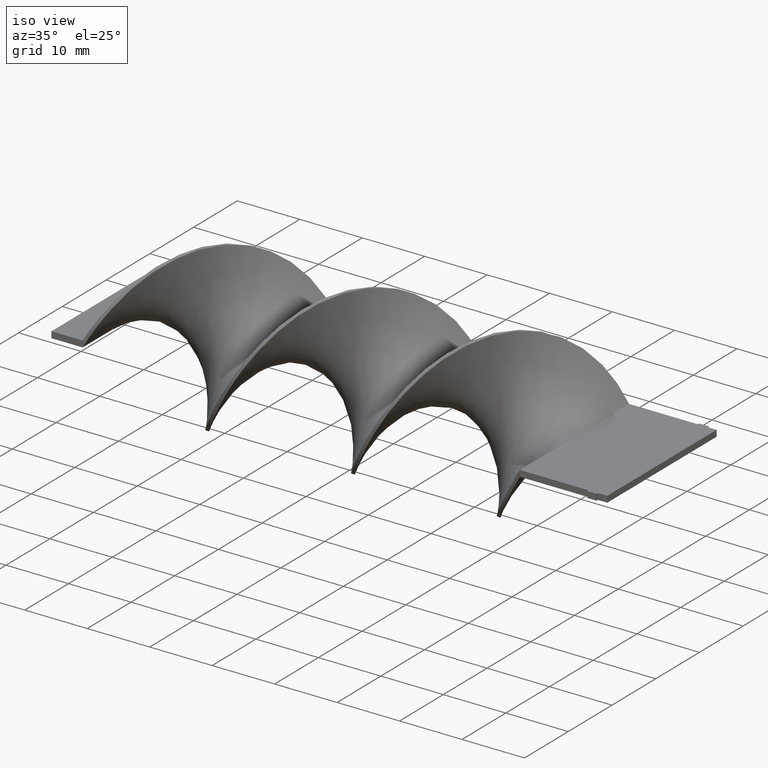
[diagram: clean part render]
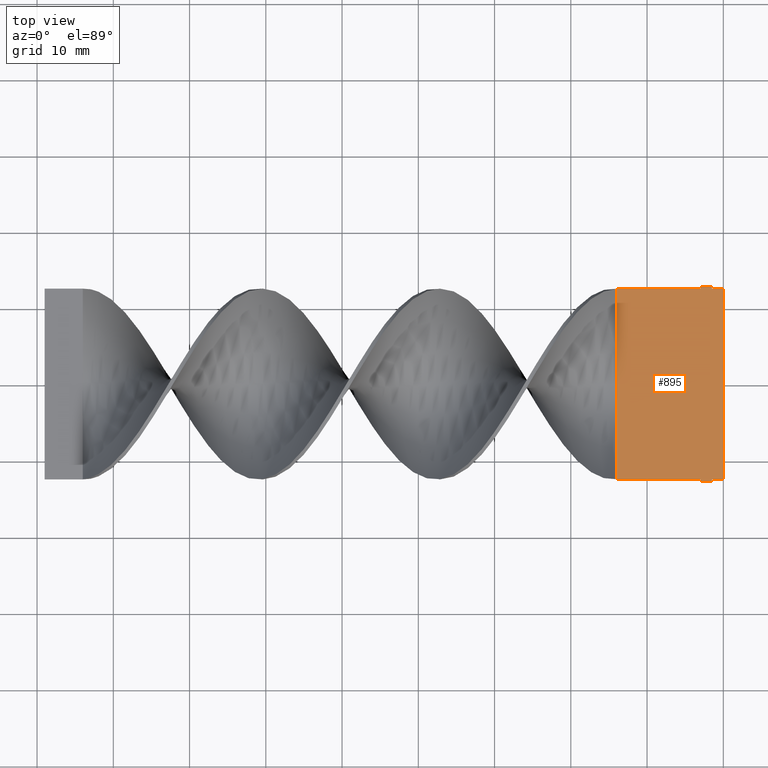
[diagram: tour spotlight — one face highlighted and labeled with its STEP entity id]
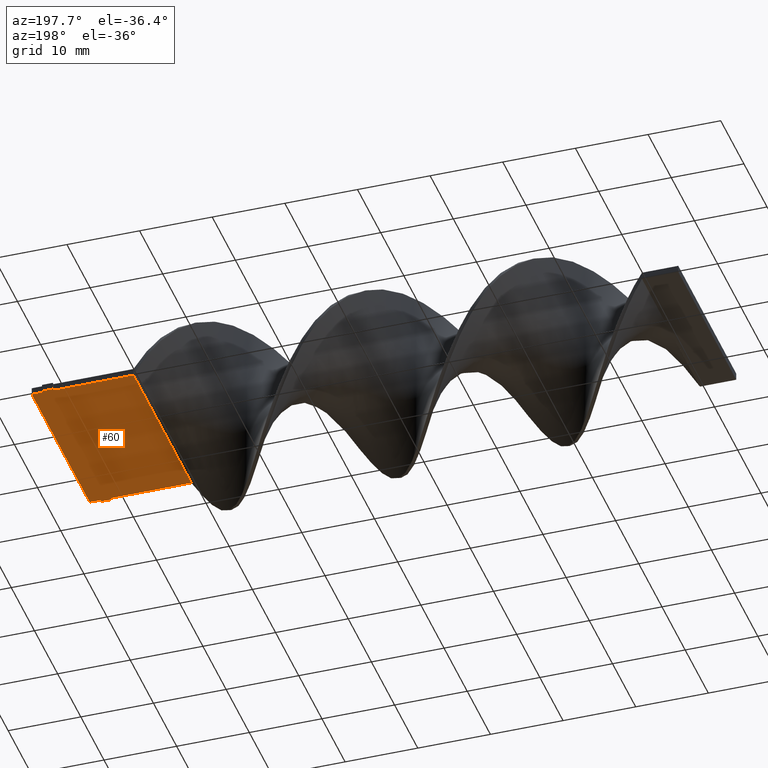
[diagram: tour spotlight — one face highlighted and labeled with its STEP entity id]
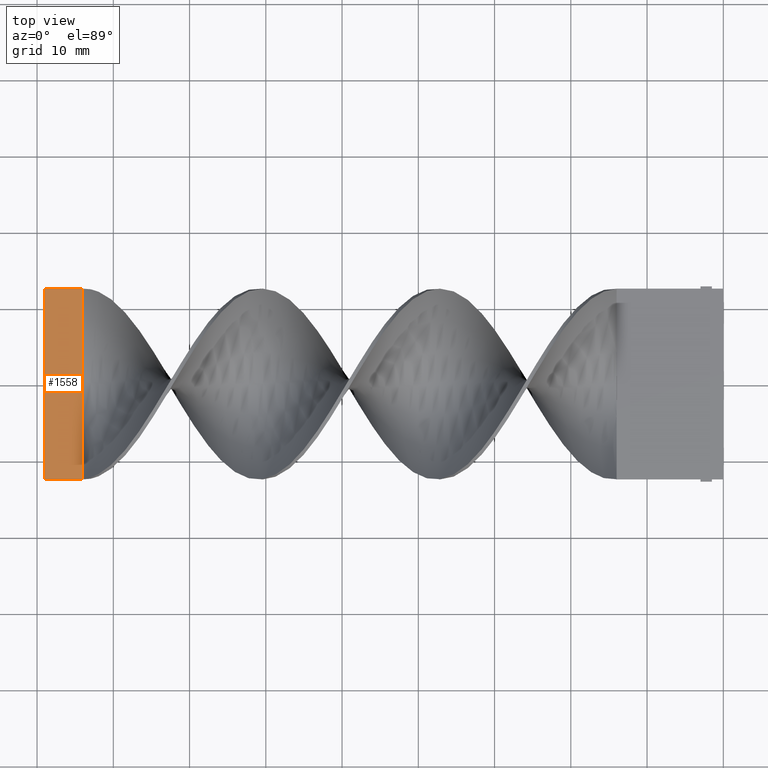
[diagram: tour spotlight — one face highlighted and labeled with its STEP entity id]
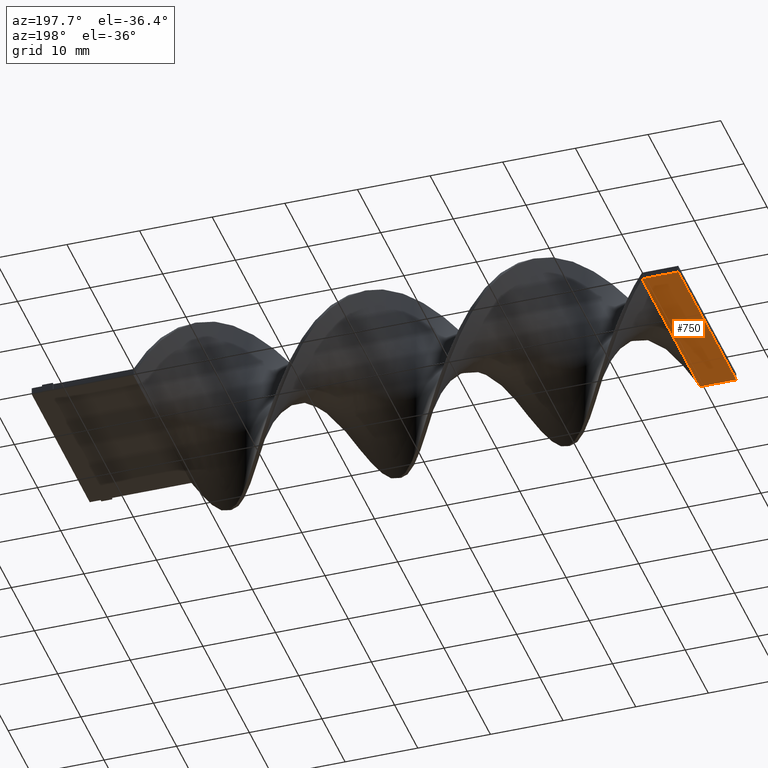
[diagram: tour spotlight — one face highlighted and labeled with its STEP entity id]
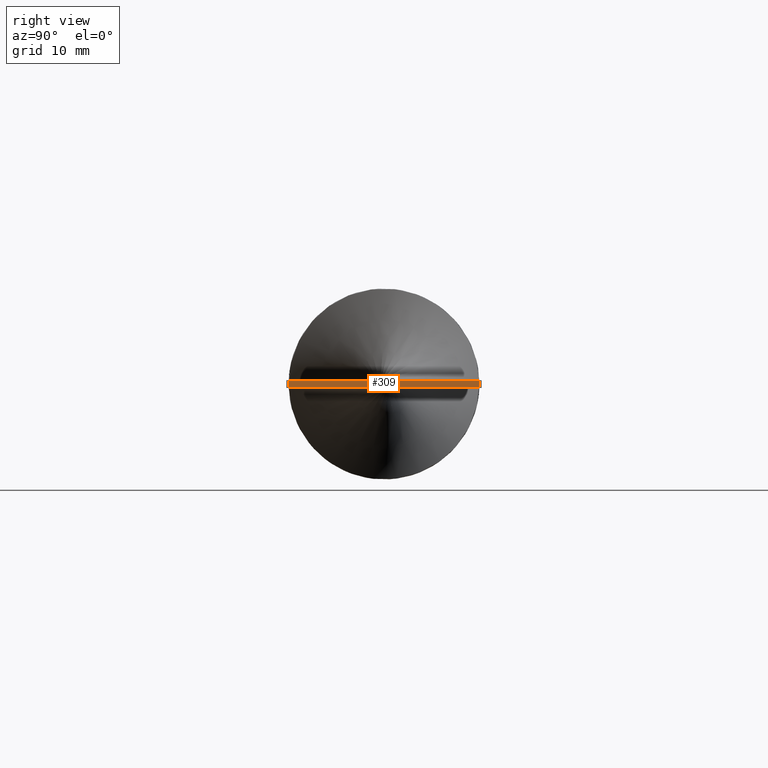
[diagram: tour spotlight — one face highlighted and labeled with its STEP entity id]
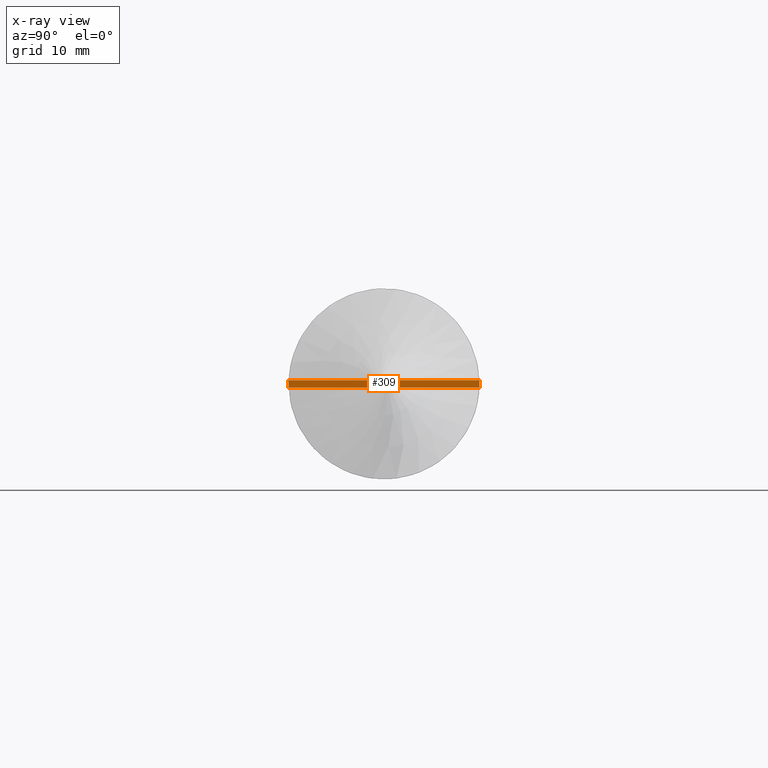
[diagram: x-ray of the same camera — body ghosted, this tour face saturated]
A machine part: a face-by-face anatomy tour. The part has 22 B-rep faces; the first image is the clean iso view, then the 5 largest visible faces are spotlighted one at a time (largest first), each with its STEP entity span.

Face 1 — top view, entity #895. In plain terms, the highlighted planar face has unit normal (0, 0, 1).
Definition (entity closure, byte-faithful):
#29 = VECTOR ( 'NONE', #942, 1000.000000000000000 ) ;
#31 = FACE_OUTER_BOUND ( 'NONE', #1239, .T. ) ;
#34 = LINE ( 'NONE', #1138, #1147 ) ;
#72 = DIRECTION ( 'NONE',  ( -7.228014483236698528E-16, -1.000000000000000000, 0.000000000000000000 ) ) ;
#76 = VERTEX_POINT ( 'NONE', #1283 ) ;
#89 = ORIENTED_EDGE ( 'NONE', *, *, #542, .F. ) ;
#97 = CARTESIAN_POINT ( 'NONE',  ( -2.999999999999993339, -12.50000000000000000, 0.5000000000000000000 ) ) ;
#98 = VECTOR ( 'NONE', #172, 1000.000000000000000 ) ;
#99 = VERTEX_POINT ( 'NONE', #285 ) ;
#107 = CARTESIAN_POINT ( 'NONE',  ( -3.061616997868383043E-15, 12.50000000000000000, 0.5000000000000000000 ) ) ;
#108 = CARTESIAN_POINT ( 'NONE',  ( -3.061616997868383043E-15, 12.50000000000000000, 0.5000000000000000000 ) ) ;
#112 = EDGE_CURVE ( 'NONE', #1423, #614, #1292, .T. ) ;
#172 = DIRECTION ( 'NONE',  ( -1.445602896647339706E-15, 1.000000000000000000, 0.000000000000000000 ) ) ;
#196 = CARTESIAN_POINT ( 'NONE',  ( -2.999999999999996003, 12.50000000000000000, 0.5000000000000000000 ) ) ;
#224 = EDGE_CURVE ( 'NONE', #1464, #1318, #1134, .T. ) ;
#260 = VERTEX_POINT ( 'NONE', #1154 ) ;
#275 = VECTOR ( 'NONE', #541, 1000.000000000000000 ) ;
#285 = CARTESIAN_POINT ( 'NONE',  ( -1.499999999999992450, -12.50000000000000000, 0.5000000000000000000 ) ) ;
#287 = EDGE_CURVE ( 'NONE', #1318, #1436, #820, .T. ) ;
#317 = DIRECTION ( 'NONE',  ( -7.228014483236698528E-16, 1.000000000000000000, 0.000000000000000000 ) ) ;
#347 = CARTESIAN_POINT ( 'NONE',  ( -13.99999999999999467, -12.50000000000000178, 0.5000000000000000000 ) ) ;
#397 = EDGE_CURVE ( 'NONE', #614, #1458, #1089, .T. ) ;
#407 = EDGE_CURVE ( 'NONE', #260, #1464, #966, .T. ) ;
#437 = LINE ( 'NONE', #1441, #1121 ) ;
#452 = CARTESIAN_POINT ( 'NONE',  ( -1.499999999999995559, 12.50000000000000000, 0.5000000000000000000 ) ) ;
#473 = DIRECTION ( 'NONE',  ( -1.000000000000000000, -1.577021341797097067E-16, 0.000000000000000000 ) ) ;
#504 = ORIENTED_EDGE ( 'NONE', *, *, #646, .F. ) ;
#507 = CARTESIAN_POINT ( 'NONE',  ( -1.499999999999995559, 12.50000000000000000, 0.5000000000000000000 ) ) ;
#511 = CARTESIAN_POINT ( 'NONE',  ( -1.499999999999992673, -12.80000000000000071, 0.5000000000000000000 ) ) ;
#541 = DIRECTION ( 'NONE',  ( -1.445602896647339706E-15, -1.000000000000000000, 0.000000000000000000 ) ) ;
#542 = EDGE_CURVE ( 'NONE', #99, #909, #1312, .T. ) ;
#574 = EDGE_CURVE ( 'NONE', #1067, #76, #831, .T. ) ;
#614 = VERTEX_POINT ( 'NONE', #97 ) ;
#632 = CARTESIAN_POINT ( 'NONE',  ( -13.99999999999999822, 12.49999999999999822, 0.5000000000000000000 ) ) ;
#638 = ORIENTED_EDGE ( 'NONE', *, *, #287, .T. ) ;
#646 = EDGE_CURVE ( 'NONE', #909, #1423, #1460, .T. ) ;
#681 = VECTOR ( 'NONE', #317, 1000.000000000000000 ) ;
#699 = EDGE_CURVE ( 'NONE', #260, #99, #34, .T. ) ;
#727 = DIRECTION ( 'NONE',  ( 0.000000000000000000, 0.000000000000000000, 1.000000000000000000 ) ) ;
#735 = DIRECTION ( 'NONE',  ( -1.224646799147353207E-16, 1.000000000000000000, 0.000000000000000000 ) ) ;
#740 = AXIS2_PLACEMENT_3D ( 'NONE', #946, #727, #975 ) ;
#784 = ORIENTED_EDGE ( 'NONE', *, *, #574, .T. ) ;
#809 = CARTESIAN_POINT ( 'NONE',  ( -2.999999999999992895, -12.80000000000000071, 0.5000000000000000000 ) ) ;
#813 = ORIENTED_EDGE ( 'NONE', *, *, #914, .T. ) ;
#820 = LINE ( 'NONE', #452, #681 ) ;
#830 = ORIENTED_EDGE ( 'NONE', *, *, #224, .T. ) ;
#831 = LINE ( 'NONE', #1157, #275 ) ;
#832 = ORIENTED_EDGE ( 'NONE', *, *, #933, .T. ) ;
#888 = ORIENTED_EDGE ( 'NONE', *, *, #1401, .T. ) ;
#895 = ADVANCED_FACE ( 'NONE', ( #31 ), #1590, .T. ) ;
#896 = VECTOR ( 'NONE', #735, 1000.000000000000000 ) ;
#909 = VERTEX_POINT ( 'NONE', #1445 ) ;
#914 = EDGE_CURVE ( 'NONE', #76, #1612, #1595, .T. ) ;
#922 = VECTOR ( 'NONE', #72, 1000.000000000000000 ) ;
#933 = EDGE_CURVE ( 'NONE', #1436, #1067, #437, .T. ) ;
#942 = DIRECTION ( 'NONE',  ( -1.000000000000000000, -1.577021341797097067E-16, 0.000000000000000000 ) ) ;
#946 = CARTESIAN_POINT ( 'NONE',  ( 0.000000000000000000, 0.000000000000000000, 0.5000000000000000000 ) ) ;
#966 = LINE ( 'NONE', #1340, #896 ) ;
#975 = DIRECTION ( 'NONE',  ( 1.000000000000000000, 0.000000000000000000, -0.000000000000000000 ) ) ;
#998 = CARTESIAN_POINT ( 'NONE',  ( -13.99999999999999822, 12.49999999999999822, 0.5000000000000000000 ) ) ;
#1004 = DIRECTION ( 'NONE',  ( -1.000000000000000000, 0.000000000000000000, 0.000000000000000000 ) ) ;
#1067 = VERTEX_POINT ( 'NONE', #1202 ) ;
#1089 = LINE ( 'NONE', #1589, #1587 ) ;
#1094 = ORIENTED_EDGE ( 'NONE', *, *, #407, .T. ) ;
#1105 = DIRECTION ( 'NONE',  ( -1.000000000000000000, 0.000000000000000000, 0.000000000000000000 ) ) ;
#1121 = VECTOR ( 'NONE', #1301, 1000.000000000000000 ) ;
#1134 = LINE ( 'NONE', #108, #1243 ) ;
#1138 = CARTESIAN_POINT ( 'NONE',  ( 0.000000000000000000, -12.50000000000000000, 0.5000000000000000000 ) ) ;
#1147 = VECTOR ( 'NONE', #1004, 1000.000000000000000 ) ;
#1154 = CARTESIAN_POINT ( 'NONE',  ( 0.000000000000000000, -12.50000000000000000, 0.5000000000000000000 ) ) ;
#1157 = CARTESIAN_POINT ( 'NONE',  ( -2.999999999999995559, 12.80000000000000071, 0.5000000000000000000 ) ) ;
#1168 = VECTOR ( 'NONE', #1241, 1000.000000000000000 ) ;
#1185 = CARTESIAN_POINT ( 'NONE',  ( -1.499999999999992450, -12.50000000000000000, 0.5000000000000000000 ) ) ;
#1202 = CARTESIAN_POINT ( 'NONE',  ( -2.999999999999995559, 12.80000000000000071, 0.5000000000000000000 ) ) ;
#1221 = ORIENTED_EDGE ( 'NONE', *, *, #112, .F. ) ;
#1223 = CARTESIAN_POINT ( 'NONE',  ( -1.499999999999995781, 12.80000000000000071, 0.5000000000000000000 ) ) ;
#1239 = EDGE_LOOP ( 'NONE', ( #1306, #1094, #830, #638, #832, #784, #813, #888, #1537, #1221, #504, #89 ) ) ;
#1241 = DIRECTION ( 'NONE',  ( 1.387778780781445676E-16, -1.000000000000000000, 0.000000000000000000 ) ) ;
#1243 = VECTOR ( 'NONE', #1105, 1000.000000000000000 ) ;
#1250 = VECTOR ( 'NONE', #1259, 1000.000000000000000 ) ;
#1259 = DIRECTION ( 'NONE',  ( -1.000000000000000000, 0.000000000000000000, 0.000000000000000000 ) ) ;
#1283 = CARTESIAN_POINT ( 'NONE',  ( -2.999999999999996003, 12.50000000000000000, 0.5000000000000000000 ) ) ;
#1292 = LINE ( 'NONE', #809, #98 ) ;
#1301 = DIRECTION ( 'NONE',  ( -1.000000000000000000, 0.000000000000000000, 0.000000000000000000 ) ) ;
#1306 = ORIENTED_EDGE ( 'NONE', *, *, #699, .F. ) ;
#1312 = LINE ( 'NONE', #1185, #922 ) ;
#1318 = VERTEX_POINT ( 'NONE', #507 ) ;
#1340 = CARTESIAN_POINT ( 'NONE',  ( 0.000000000000000000, -12.50000000000000000, 0.5000000000000000000 ) ) ;
#1370 = LINE ( 'NONE', #998, #1168 ) ;
#1401 = EDGE_CURVE ( 'NONE', #1612, #1458, #1370, .T. ) ;
#1423 = VERTEX_POINT ( 'NONE', #1476 ) ;
#1436 = VERTEX_POINT ( 'NONE', #1223 ) ;
#1441 = CARTESIAN_POINT ( 'NONE',  ( -1.499999999999995781, 12.80000000000000071, 0.5000000000000000000 ) ) ;
#1445 = CARTESIAN_POINT ( 'NONE',  ( -1.499999999999992673, -12.80000000000000071, 0.5000000000000000000 ) ) ;
#1458 = VERTEX_POINT ( 'NONE', #347 ) ;
#1460 = LINE ( 'NONE', #511, #1250 ) ;
#1464 = VERTEX_POINT ( 'NONE', #107 ) ;
#1476 = CARTESIAN_POINT ( 'NONE',  ( -2.999999999999992895, -12.80000000000000071, 0.5000000000000000000 ) ) ;
#1537 = ORIENTED_EDGE ( 'NONE', *, *, #397, .F. ) ;
#1587 = VECTOR ( 'NONE', #473, 1000.000000000000000 ) ;
#1589 = CARTESIAN_POINT ( 'NONE',  ( -2.999999999999993339, -12.50000000000000000, 0.5000000000000000000 ) ) ;
#1590 = PLANE ( 'NONE',  #740 ) ;
#1595 = LINE ( 'NONE', #196, #29 ) ;
#1612 = VERTEX_POINT ( 'NONE', #632 ) ;

Face 2 — auxiliary view, entity #60. In plain terms, the highlighted planar face has unit normal (0, 0, 1).
Definition (entity closure, byte-faithful):
#2 = VERTEX_POINT ( 'NONE', #460 ) ;
#25 = VERTEX_POINT ( 'NONE', #86 ) ;
#33 = DIRECTION ( 'NONE',  ( 1.000000000000000000, 0.000000000000000000, -0.000000000000000000 ) ) ;
#45 = CARTESIAN_POINT ( 'NONE',  ( 0.000000000000000000, 0.000000000000000000, -0.5000000000000000000 ) ) ;
#48 = DIRECTION ( 'NONE',  ( -1.445602896647339706E-15, -1.000000000000000000, 0.000000000000000000 ) ) ;
#58 = ORIENTED_EDGE ( 'NONE', *, *, #738, .F. ) ;
#60 = ADVANCED_FACE ( 'NONE', ( #1032 ), #280, .F. ) ;
#86 = CARTESIAN_POINT ( 'NONE',  ( -1.499999999999992450, -12.50000000000000000, -0.5000000000000000000 ) ) ;
#111 = CARTESIAN_POINT ( 'NONE',  ( -1.499999999999992673, -12.80000000000000071, -0.5000000000000000000 ) ) ;
#115 = DIRECTION ( 'NONE',  ( -1.000000000000000000, -1.577021341797097067E-16, 0.000000000000000000 ) ) ;
#129 = EDGE_CURVE ( 'NONE', #212, #950, #1297, .T. ) ;
#140 = DIRECTION ( 'NONE',  ( 1.387778780781445676E-16, -1.000000000000000000, 0.000000000000000000 ) ) ;
#159 = CARTESIAN_POINT ( 'NONE',  ( 0.000000000000000000, -12.50000000000000000, -0.5000000000000000000 ) ) ;
#173 = VECTOR ( 'NONE', #115, 1000.000000000000000 ) ;
#202 = VECTOR ( 'NONE', #648, 1000.000000000000000 ) ;
#212 = VERTEX_POINT ( 'NONE', #217 ) ;
#217 = CARTESIAN_POINT ( 'NONE',  ( -2.999999999999993339, -12.50000000000000000, -0.5000000000000000000 ) ) ;
#228 = ORIENTED_EDGE ( 'NONE', *, *, #243, .F. ) ;
#242 = CARTESIAN_POINT ( 'NONE',  ( -3.061616997868383043E-15, 12.50000000000000000, -0.5000000000000000000 ) ) ;
#243 = EDGE_CURVE ( 'NONE', #1440, #902, #529, .T. ) ;
#256 = CARTESIAN_POINT ( 'NONE',  ( 0.000000000000000000, -12.50000000000000000, -0.5000000000000000000 ) ) ;
#280 = PLANE ( 'NONE',  #935 ) ;
#292 = VECTOR ( 'NONE', #304, 1000.000000000000000 ) ;
#304 = DIRECTION ( 'NONE',  ( -7.228014483236698528E-16, -1.000000000000000000, 0.000000000000000000 ) ) ;
#315 = CARTESIAN_POINT ( 'NONE',  ( -1.499999999999992450, -12.50000000000000000, -0.5000000000000000000 ) ) ;
#324 = LINE ( 'NONE', #1325, #845 ) ;
#332 = DIRECTION ( 'NONE',  ( -7.228014483236698528E-16, 1.000000000000000000, 0.000000000000000000 ) ) ;
#333 = VERTEX_POINT ( 'NONE', #1305 ) ;
#340 = EDGE_CURVE ( 'NONE', #1140, #345, #567, .T. ) ;
#345 = VERTEX_POINT ( 'NONE', #1332 ) ;
#367 = LINE ( 'NONE', #256, #1429 ) ;
#385 = LINE ( 'NONE', #773, #202 ) ;
#418 = EDGE_CURVE ( 'NONE', #902, #1260, #1379, .T. ) ;
#432 = VERTEX_POINT ( 'NONE', #1269 ) ;
#460 = CARTESIAN_POINT ( 'NONE',  ( -3.061616997868383043E-15, 12.50000000000000000, -0.5000000000000000000 ) ) ;
#480 = ORIENTED_EDGE ( 'NONE', *, *, #524, .T. ) ;
#489 = ORIENTED_EDGE ( 'NONE', *, *, #1263, .F. ) ;
#512 = ORIENTED_EDGE ( 'NONE', *, *, #851, .F. ) ;
#524 = EDGE_CURVE ( 'NONE', #25, #1140, #1431, .T. ) ;
#529 = LINE ( 'NONE', #1387, #1137 ) ;
#532 = CARTESIAN_POINT ( 'NONE',  ( -2.999999999999993339, -12.50000000000000000, -0.5000000000000000000 ) ) ;
#552 = VECTOR ( 'NONE', #682, 1000.000000000000000 ) ;
#562 = LINE ( 'NONE', #1055, #1564 ) ;
#567 = LINE ( 'NONE', #1061, #1481 ) ;
#570 = VECTOR ( 'NONE', #692, 1000.000000000000000 ) ;
#648 = DIRECTION ( 'NONE',  ( -1.445602896647339706E-15, 1.000000000000000000, 0.000000000000000000 ) ) ;
#674 = LINE ( 'NONE', #159, #552 ) ;
#682 = DIRECTION ( 'NONE',  ( -1.224646799147353207E-16, 1.000000000000000000, 0.000000000000000000 ) ) ;
#690 = VECTOR ( 'NONE', #1050, 1000.000000000000000 ) ;
#692 = DIRECTION ( 'NONE',  ( -1.000000000000000000, -1.577021341797097067E-16, 0.000000000000000000 ) ) ;
#694 = CARTESIAN_POINT ( 'NONE',  ( -13.99999999999999467, -12.50000000000000178, -0.5000000000000000000 ) ) ;
#738 = EDGE_CURVE ( 'NONE', #2, #333, #887, .T. ) ;
#762 = CARTESIAN_POINT ( 'NONE',  ( -2.999999999999996003, 12.50000000000000000, -0.5000000000000000000 ) ) ;
#771 = EDGE_CURVE ( 'NONE', #432, #25, #367, .T. ) ;
#772 = CARTESIAN_POINT ( 'NONE',  ( -13.99999999999999822, 12.49999999999999822, -0.5000000000000000000 ) ) ;
#773 = CARTESIAN_POINT ( 'NONE',  ( -2.999999999999992895, -12.80000000000000071, -0.5000000000000000000 ) ) ;
#790 = EDGE_CURVE ( 'NONE', #345, #212, #385, .T. ) ;
#798 = DIRECTION ( 'NONE',  ( 0.000000000000000000, 0.000000000000000000, 1.000000000000000000 ) ) ;
#845 = VECTOR ( 'NONE', #332, 1000.000000000000000 ) ;
#851 = EDGE_CURVE ( 'NONE', #432, #2, #674, .T. ) ;
#858 = ORIENTED_EDGE ( 'NONE', *, *, #418, .F. ) ;
#866 = ORIENTED_EDGE ( 'NONE', *, *, #129, .T. ) ;
#887 = LINE ( 'NONE', #242, #690 ) ;
#902 = VERTEX_POINT ( 'NONE', #1475 ) ;
#935 = AXIS2_PLACEMENT_3D ( 'NONE', #45, #798, #33 ) ;
#939 = DIRECTION ( 'NONE',  ( -1.000000000000000000, 0.000000000000000000, 0.000000000000000000 ) ) ;
#950 = VERTEX_POINT ( 'NONE', #694 ) ;
#982 = EDGE_CURVE ( 'NONE', #333, #1169, #324, .T. ) ;
#1005 = ORIENTED_EDGE ( 'NONE', *, *, #340, .T. ) ;
#1032 = FACE_OUTER_BOUND ( 'NONE', #1254, .T. ) ;
#1047 = CARTESIAN_POINT ( 'NONE',  ( -13.99999999999999822, 12.49999999999999822, -0.5000000000000000000 ) ) ;
#1050 = DIRECTION ( 'NONE',  ( -1.000000000000000000, 0.000000000000000000, 0.000000000000000000 ) ) ;
#1055 = CARTESIAN_POINT ( 'NONE',  ( -1.499999999999995781, 12.80000000000000071, -0.5000000000000000000 ) ) ;
#1061 = CARTESIAN_POINT ( 'NONE',  ( -1.499999999999992673, -12.80000000000000071, -0.5000000000000000000 ) ) ;
#1082 = DIRECTION ( 'NONE',  ( -1.000000000000000000, 0.000000000000000000, 0.000000000000000000 ) ) ;
#1137 = VECTOR ( 'NONE', #48, 1000.000000000000000 ) ;
#1140 = VERTEX_POINT ( 'NONE', #111 ) ;
#1169 = VERTEX_POINT ( 'NONE', #1363 ) ;
#1186 = ORIENTED_EDGE ( 'NONE', *, *, #982, .F. ) ;
#1251 = DIRECTION ( 'NONE',  ( -1.000000000000000000, 0.000000000000000000, 0.000000000000000000 ) ) ;
#1254 = EDGE_LOOP ( 'NONE', ( #1603, #480, #1005, #1317, #866, #1503, #858, #228, #489, #1186, #58, #512 ) ) ;
#1260 = VERTEX_POINT ( 'NONE', #1047 ) ;
#1263 = EDGE_CURVE ( 'NONE', #1169, #1440, #562, .T. ) ;
#1269 = CARTESIAN_POINT ( 'NONE',  ( 0.000000000000000000, -12.50000000000000000, -0.5000000000000000000 ) ) ;
#1297 = LINE ( 'NONE', #532, #570 ) ;
#1305 = CARTESIAN_POINT ( 'NONE',  ( -1.499999999999995559, 12.50000000000000000, -0.5000000000000000000 ) ) ;
#1317 = ORIENTED_EDGE ( 'NONE', *, *, #790, .T. ) ;
#1325 = CARTESIAN_POINT ( 'NONE',  ( -1.499999999999995559, 12.50000000000000000, -0.5000000000000000000 ) ) ;
#1332 = CARTESIAN_POINT ( 'NONE',  ( -2.999999999999992895, -12.80000000000000071, -0.5000000000000000000 ) ) ;
#1344 = CARTESIAN_POINT ( 'NONE',  ( -2.999999999999995559, 12.80000000000000071, -0.5000000000000000000 ) ) ;
#1363 = CARTESIAN_POINT ( 'NONE',  ( -1.499999999999995781, 12.80000000000000071, -0.5000000000000000000 ) ) ;
#1379 = LINE ( 'NONE', #762, #173 ) ;
#1387 = CARTESIAN_POINT ( 'NONE',  ( -2.999999999999995559, 12.80000000000000071, -0.5000000000000000000 ) ) ;
#1429 = VECTOR ( 'NONE', #1251, 1000.000000000000000 ) ;
#1431 = LINE ( 'NONE', #315, #292 ) ;
#1440 = VERTEX_POINT ( 'NONE', #1344 ) ;
#1475 = CARTESIAN_POINT ( 'NONE',  ( -2.999999999999996003, 12.50000000000000000, -0.5000000000000000000 ) ) ;
#1481 = VECTOR ( 'NONE', #1082, 1000.000000000000000 ) ;
#1489 = VECTOR ( 'NONE', #140, 1000.000000000000000 ) ;
#1503 = ORIENTED_EDGE ( 'NONE', *, *, #1524, .F. ) ;
#1511 = LINE ( 'NONE', #772, #1489 ) ;
#1524 = EDGE_CURVE ( 'NONE', #1260, #950, #1511, .T. ) ;
#1564 = VECTOR ( 'NONE', #939, 1000.000000000000000 ) ;
#1603 = ORIENTED_EDGE ( 'NONE', *, *, #771, .T. ) ;

Face 3 — top view, entity #1558. In plain terms, the highlighted planar face has unit normal (0, -0, -1).
Definition (entity closure, byte-faithful):
#80 = EDGE_CURVE ( 'NONE', #143, #1604, #419, .T. ) ;
#106 = DIRECTION ( 'NONE',  ( 0.000000000000000000, -1.214306433183764966E-16, -1.000000000000000000 ) ) ;
#143 = VERTEX_POINT ( 'NONE', #328 ) ;
#180 = DIRECTION ( 'NONE',  ( 1.000000000000000000, -0.000000000000000000, -0.000000000000000000 ) ) ;
#193 = EDGE_CURVE ( 'NONE', #1565, #544, #837, .T. ) ;
#204 = DIRECTION ( 'NONE',  ( 0.000000000000000000, 1.000000000000000000, -1.214306433183764966E-16 ) ) ;
#227 = VECTOR ( 'NONE', #204, 1000.000000000000000 ) ;
#322 = VECTOR ( 'NONE', #1345, 1000.000000000000000 ) ;
#328 = CARTESIAN_POINT ( 'NONE',  ( -89.00000000000001421, -12.50000000000000178, 0.5000000000000015543 ) ) ;
#338 = CARTESIAN_POINT ( 'NONE',  ( -89.00000000000001421, 12.49999999999999822, 0.4999999999999985012 ) ) ;
#343 = PLANE ( 'NONE',  #874 ) ;
#419 = LINE ( 'NONE', #927, #804 ) ;
#470 = ORIENTED_EDGE ( 'NONE', *, *, #80, .T. ) ;
#544 = VERTEX_POINT ( 'NONE', #1543 ) ;
#598 = ORIENTED_EDGE ( 'NONE', *, *, #1048, .F. ) ;
#615 = DIRECTION ( 'NONE',  ( 0.000000000000000000, 1.000000000000000000, -1.214306433183764966E-16 ) ) ;
#622 = CARTESIAN_POINT ( 'NONE',  ( -84.00000000000000000, -12.50000000000000178, 0.5000000000000015543 ) ) ;
#725 = CARTESIAN_POINT ( 'NONE',  ( -84.00000000000000000, -12.50000000000000178, 0.5000000000000015543 ) ) ;
#746 = CARTESIAN_POINT ( 'NONE',  ( -89.00000000000001421, 12.49999999999999822, 0.4999999999999985012 ) ) ;
#804 = VECTOR ( 'NONE', #180, 1000.000000000000000 ) ;
#837 = LINE ( 'NONE', #338, #322 ) ;
#850 = CARTESIAN_POINT ( 'NONE',  ( -89.00000000000001421, -12.50000000000000178, 0.5000000000000015543 ) ) ;
#874 = AXIS2_PLACEMENT_3D ( 'NONE', #1488, #106, #615 ) ;
#878 = B_SPLINE_CURVE_WITH_KNOTS ( 'NONE', 3,
 ( #725, #1453, #1233, #1205 ),
 .UNSPECIFIED., .F., .F.,
 ( 4, 4 ),
 ( 0.000000000000000000, 1.000000000000000000 ),
 .UNSPECIFIED. ) ;
#927 = CARTESIAN_POINT ( 'NONE',  ( -89.00000000000001421, -12.50000000000000178, 0.5000000000000015543 ) ) ;
#972 = ORIENTED_EDGE ( 'NONE', *, *, #193, .F. ) ;
#1048 = EDGE_CURVE ( 'NONE', #143, #1565, #1575, .T. ) ;
#1051 = EDGE_LOOP ( 'NONE', ( #1496, #972, #598, #470 ) ) ;
#1205 = CARTESIAN_POINT ( 'NONE',  ( -84.00000000000000000, 12.49999999999999822, 0.4999999999999985012 ) ) ;
#1233 = CARTESIAN_POINT ( 'NONE',  ( -84.00000000000000000, 4.166666666666666075, 0.4999999999999994449 ) ) ;
#1345 = DIRECTION ( 'NONE',  ( 1.000000000000000000, -0.000000000000000000, -0.000000000000000000 ) ) ;
#1453 = CARTESIAN_POINT ( 'NONE',  ( -84.00000000000000000, -4.166666666666669627, 0.5000000000000005551 ) ) ;
#1488 = CARTESIAN_POINT ( 'NONE',  ( -89.00000000000001421, -12.50000000000000178, 0.5000000000000015543 ) ) ;
#1496 = ORIENTED_EDGE ( 'NONE', *, *, #1579, .T. ) ;
#1543 = CARTESIAN_POINT ( 'NONE',  ( -84.00000000000000000, 12.49999999999999822, 0.4999999999999985012 ) ) ;
#1558 = ADVANCED_FACE ( 'NONE', ( #1598 ), #343, .F. ) ;
#1565 = VERTEX_POINT ( 'NONE', #746 ) ;
#1575 = LINE ( 'NONE', #850, #227 ) ;
#1579 = EDGE_CURVE ( 'NONE', #1604, #544, #878, .T. ) ;
#1598 = FACE_OUTER_BOUND ( 'NONE', #1051, .T. ) ;
#1604 = VERTEX_POINT ( 'NONE', #622 ) ;

Face 4 — auxiliary view, entity #750. In plain terms, the highlighted planar face has unit normal (0, 0, 1).
Definition (entity closure, byte-faithful):
#5 = AXIS2_PLACEMENT_3D ( 'NONE', #219, #838, #748 ) ;
#123 = DIRECTION ( 'NONE',  ( 1.000000000000000000, -0.000000000000000000, -0.000000000000000000 ) ) ;
#124 = B_SPLINE_CURVE_WITH_KNOTS ( 'NONE', 3,
 ( #1076, #456, #1447, #320 ),
 .UNSPECIFIED., .F., .F.,
 ( 4, 4 ),
 ( 0.000000000000000000, 1.000000000000000000 ),
 .UNSPECIFIED. ) ;
#175 = EDGE_CURVE ( 'NONE', #1342, #534, #124, .T. ) ;
#178 = VECTOR ( 'NONE', #123, 1000.000000000000000 ) ;
#219 = CARTESIAN_POINT ( 'NONE',  ( -89.00000000000001421, 12.49999999999999822, -0.5000000000000015543 ) ) ;
#252 = CARTESIAN_POINT ( 'NONE',  ( -89.00000000000001421, -12.50000000000000178, -0.4999999999999985012 ) ) ;
#300 = CARTESIAN_POINT ( 'NONE',  ( -89.00000000000001421, 12.49999999999999822, -0.5000000000000015543 ) ) ;
#308 = VERTEX_POINT ( 'NONE', #1197 ) ;
#320 = CARTESIAN_POINT ( 'NONE',  ( -84.00000000000000000, -12.50000000000000178, -0.4999999999999985012 ) ) ;
#355 = CARTESIAN_POINT ( 'NONE',  ( -84.00000000000000000, 12.49999999999999822, -0.5000000000000015543 ) ) ;
#364 = CARTESIAN_POINT ( 'NONE',  ( -89.00000000000001421, 12.49999999999999822, -0.5000000000000015543 ) ) ;
#456 = CARTESIAN_POINT ( 'NONE',  ( -84.00000000000000000, 4.166666666666666075, -0.5000000000000005551 ) ) ;
#457 = FACE_OUTER_BOUND ( 'NONE', #1011, .T. ) ;
#499 = DIRECTION ( 'NONE',  ( 0.000000000000000000, -1.000000000000000000, 1.214306433183764966E-16 ) ) ;
#534 = VERTEX_POINT ( 'NONE', #826 ) ;
#608 = VECTOR ( 'NONE', #499, 1000.000000000000000 ) ;
#671 = VERTEX_POINT ( 'NONE', #252 ) ;
#737 = LINE ( 'NONE', #1600, #178 ) ;
#748 = DIRECTION ( 'NONE',  ( 0.000000000000000000, -1.000000000000000000, 1.214306433183764966E-16 ) ) ;
#750 = ADVANCED_FACE ( 'NONE', ( #457 ), #1448, .F. ) ;
#756 = DIRECTION ( 'NONE',  ( 1.000000000000000000, -0.000000000000000000, -0.000000000000000000 ) ) ;
#826 = CARTESIAN_POINT ( 'NONE',  ( -84.00000000000000000, -12.50000000000000178, -0.4999999999999985012 ) ) ;
#838 = DIRECTION ( 'NONE',  ( 0.000000000000000000, 1.214306433183764966E-16, 1.000000000000000000 ) ) ;
#871 = LINE ( 'NONE', #364, #608 ) ;
#1011 = EDGE_LOOP ( 'NONE', ( #1347, #1576, #1103, #1054 ) ) ;
#1043 = VECTOR ( 'NONE', #756, 1000.000000000000000 ) ;
#1054 = ORIENTED_EDGE ( 'NONE', *, *, #1286, .T. ) ;
#1076 = CARTESIAN_POINT ( 'NONE',  ( -84.00000000000000000, 12.49999999999999822, -0.5000000000000015543 ) ) ;
#1103 = ORIENTED_EDGE ( 'NONE', *, *, #1457, .F. ) ;
#1197 = CARTESIAN_POINT ( 'NONE',  ( -89.00000000000001421, 12.49999999999999822, -0.5000000000000015543 ) ) ;
#1286 = EDGE_CURVE ( 'NONE', #308, #1342, #1425, .T. ) ;
#1342 = VERTEX_POINT ( 'NONE', #355 ) ;
#1347 = ORIENTED_EDGE ( 'NONE', *, *, #175, .T. ) ;
#1425 = LINE ( 'NONE', #300, #1043 ) ;
#1434 = EDGE_CURVE ( 'NONE', #671, #534, #737, .T. ) ;
#1447 = CARTESIAN_POINT ( 'NONE',  ( -84.00000000000000000, -4.166666666666669627, -0.4999999999999994449 ) ) ;
#1448 = PLANE ( 'NONE',  #5 ) ;
#1457 = EDGE_CURVE ( 'NONE', #308, #671, #871, .T. ) ;
#1576 = ORIENTED_EDGE ( 'NONE', *, *, #1434, .F. ) ;
#1600 = CARTESIAN_POINT ( 'NONE',  ( -89.00000000000001421, -12.50000000000000178, -0.4999999999999985012 ) ) ;

Face 5 — right view, entity #309. An x-ray twin of the same camera follows (body ghosted, this face saturated) — the face is partly hidden behind the body. In plain terms, the highlighted planar face has unit normal (-1, -0, 0).
Definition (entity closure, byte-faithful):
#2 = VERTEX_POINT ( 'NONE', #460 ) ;
#43 = ORIENTED_EDGE ( 'NONE', *, *, #1150, .F. ) ;
#65 = FACE_OUTER_BOUND ( 'NONE', #155, .T. ) ;
#107 = CARTESIAN_POINT ( 'NONE',  ( -3.061616997868383043E-15, 12.50000000000000000, 0.5000000000000000000 ) ) ;
#155 = EDGE_LOOP ( 'NONE', ( #652, #43, #938, #964 ) ) ;
#159 = CARTESIAN_POINT ( 'NONE',  ( 0.000000000000000000, -12.50000000000000000, -0.5000000000000000000 ) ) ;
#260 = VERTEX_POINT ( 'NONE', #1154 ) ;
#309 = ADVANCED_FACE ( 'NONE', ( #65 ), #726, .F. ) ;
#391 = VECTOR ( 'NONE', #892, 1000.000000000000000 ) ;
#407 = EDGE_CURVE ( 'NONE', #260, #1464, #966, .T. ) ;
#432 = VERTEX_POINT ( 'NONE', #1269 ) ;
#460 = CARTESIAN_POINT ( 'NONE',  ( -3.061616997868383043E-15, 12.50000000000000000, -0.5000000000000000000 ) ) ;
#552 = VECTOR ( 'NONE', #682, 1000.000000000000000 ) ;
#583 = DIRECTION ( 'NONE',  ( -1.000000000000000000, -1.224646799147353207E-16, 0.000000000000000000 ) ) ;
#621 = EDGE_CURVE ( 'NONE', #260, #432, #1087, .T. ) ;
#652 = ORIENTED_EDGE ( 'NONE', *, *, #851, .T. ) ;
#674 = LINE ( 'NONE', #159, #552 ) ;
#682 = DIRECTION ( 'NONE',  ( -1.224646799147353207E-16, 1.000000000000000000, 0.000000000000000000 ) ) ;
#726 = PLANE ( 'NONE',  #1164 ) ;
#735 = DIRECTION ( 'NONE',  ( -1.224646799147353207E-16, 1.000000000000000000, 0.000000000000000000 ) ) ;
#844 = DIRECTION ( 'NONE',  ( 1.224646799147353207E-16, -1.000000000000000000, 0.000000000000000000 ) ) ;
#851 = EDGE_CURVE ( 'NONE', #432, #2, #674, .T. ) ;
#892 = DIRECTION ( 'NONE',  ( -0.000000000000000000, -0.000000000000000000, -1.000000000000000000 ) ) ;
#896 = VECTOR ( 'NONE', #735, 1000.000000000000000 ) ;
#938 = ORIENTED_EDGE ( 'NONE', *, *, #407, .F. ) ;
#963 = DIRECTION ( 'NONE',  ( -0.000000000000000000, -0.000000000000000000, -1.000000000000000000 ) ) ;
#964 = ORIENTED_EDGE ( 'NONE', *, *, #621, .T. ) ;
#966 = LINE ( 'NONE', #1340, #896 ) ;
#1016 = VECTOR ( 'NONE', #963, 1000.000000000000000 ) ;
#1087 = LINE ( 'NONE', #1584, #1016 ) ;
#1106 = CARTESIAN_POINT ( 'NONE',  ( -3.061616997868383043E-15, 12.50000000000000000, 0.5000000000000000000 ) ) ;
#1150 = EDGE_CURVE ( 'NONE', #1464, #2, #1617, .T. ) ;
#1154 = CARTESIAN_POINT ( 'NONE',  ( 0.000000000000000000, -12.50000000000000000, 0.5000000000000000000 ) ) ;
#1164 = AXIS2_PLACEMENT_3D ( 'NONE', #1422, #583, #844 ) ;
#1269 = CARTESIAN_POINT ( 'NONE',  ( 0.000000000000000000, -12.50000000000000000, -0.5000000000000000000 ) ) ;
#1340 = CARTESIAN_POINT ( 'NONE',  ( 0.000000000000000000, -12.50000000000000000, 0.5000000000000000000 ) ) ;
#1422 = CARTESIAN_POINT ( 'NONE',  ( 0.000000000000000000, -12.50000000000000000, 0.5000000000000000000 ) ) ;
#1464 = VERTEX_POINT ( 'NONE', #107 ) ;
#1584 = CARTESIAN_POINT ( 'NONE',  ( 0.000000000000000000, -12.50000000000000000, 0.5000000000000000000 ) ) ;
#1617 = LINE ( 'NONE', #1106, #391 ) ;